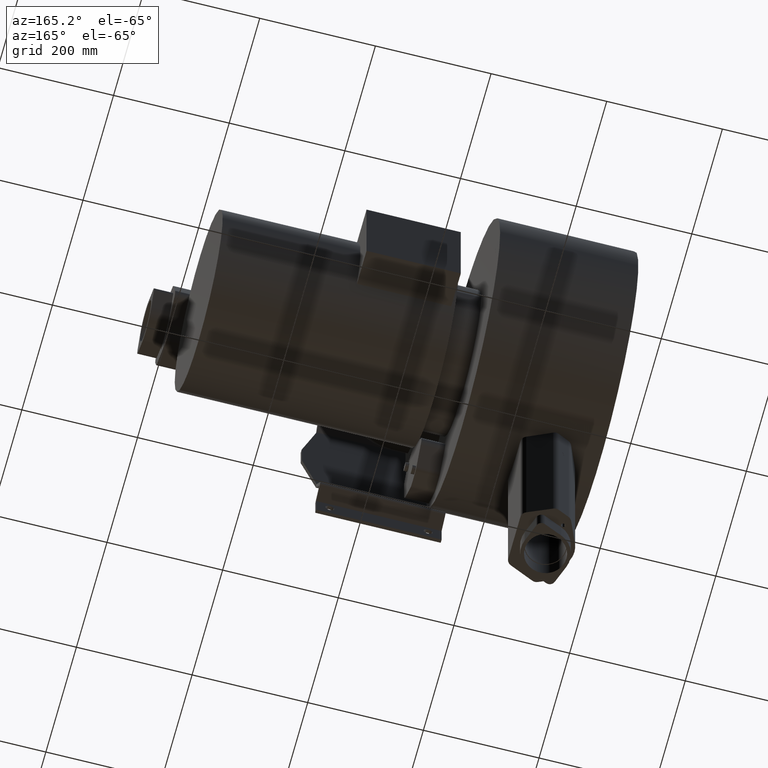
[diagram: clean part render]
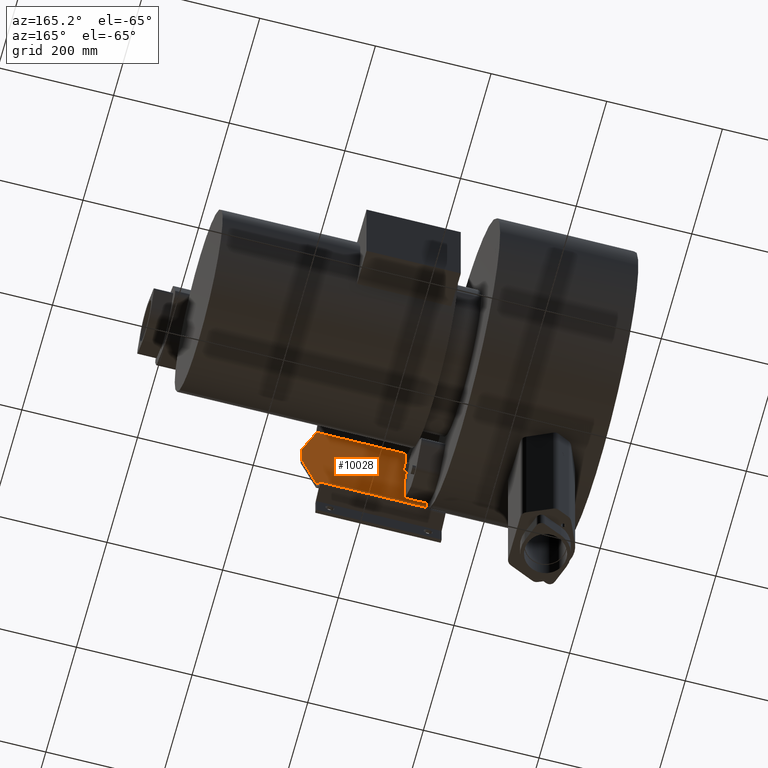
[diagram: same view with one face highlighted and labeled with its STEP entity id]
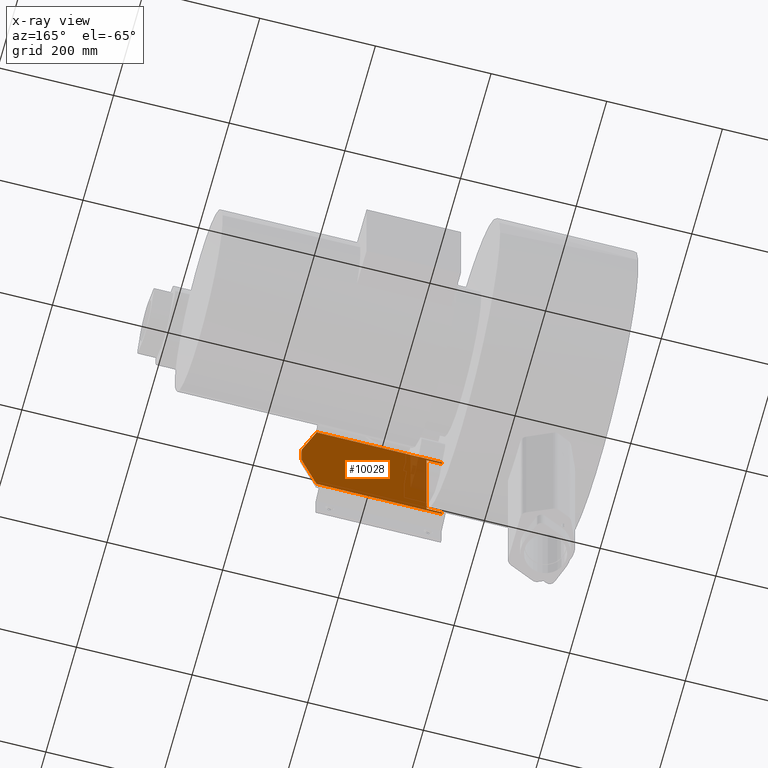
[diagram: x-ray of the same camera — body ghosted, the highlighted face saturated]
A machine part, auxiliary view. The second image highlights one B-rep face of the part: STEP entity #10028.
The next image is the same camera in x-ray: the body ghosted, the highlighted face saturated — about 9% of this face is hidden behind the body in this view.
In plain terms, the highlighted planar face has unit normal (0, 1, 0).
Its self-contained STEP definition (entity closure, byte-faithful):
#9752=CARTESIAN_POINT('',(212.30000000000004,-230.99999999999997,95.598117136270048));
#9753=VERTEX_POINT('',#9752);
#9761=CARTESIAN_POINT('',(239.00000000000003,-230.99999999999997,95.598117136270048));
#9762=VERTEX_POINT('',#9761);
#9763=CARTESIAN_POINT('',(212.30000000000004,-230.99999999999997,95.598117136270048));
#9764=DIRECTION('',(1.0,0.0,0.0));
#9765=VECTOR('',#9764,26.69999999999996);
#9766=LINE('',#9763,#9765);
#9767=EDGE_CURVE('',#9753,#9762,#9766,.T.);
#9769=CARTESIAN_POINT('',(239.00000000000003,-230.99999999999997,-95.598117136270048));
#9770=VERTEX_POINT('',#9769);
#9778=CARTESIAN_POINT('',(212.30000000000004,-230.99999999999997,-95.598117136270048));
#9779=VERTEX_POINT('',#9778);
#9780=CARTESIAN_POINT('',(239.0,-230.99999999999997,-95.598117136270048));
#9781=DIRECTION('',(-1.0,0.0,0.0));
#9782=VECTOR('',#9781,26.69999999999996);
#9783=LINE('',#9780,#9782);
#9784=EDGE_CURVE('',#9770,#9779,#9783,.T.);
#9959=CARTESIAN_POINT('',(239.00000000000003,-230.99999999999997,102.21539030917339));
#9960=DIRECTION('',(0.0,1.0,0.0));
#9961=DIRECTION('',(0.0,0.0,1.0));
#9962=AXIS2_PLACEMENT_3D('',#9959,#9960,#9961);
#9963=PLANE('',#9962);
#9964=ORIENTED_EDGE('',*,*,#9767,.F.);
#9965=CARTESIAN_POINT('',(212.30000000000007,-230.99999999999997,102.21539030917339));
#9966=VERTEX_POINT('',#9965);
#9967=CARTESIAN_POINT('',(212.30000000000004,-230.99999999999997,95.598117136270034));
#9968=DIRECTION('',(0.0,0.0,1.0));
#9969=VECTOR('',#9968,6.617273172903339);
#9970=LINE('',#9967,#9969);
#9971=EDGE_CURVE('',#9753,#9966,#9970,.T.);
#9972=ORIENTED_EDGE('',*,*,#9971,.T.);
#9973=CARTESIAN_POINT('',(429.30000000000007,-230.99999999999997,102.21539030917339));
#9974=VERTEX_POINT('',#9973);
#9975=CARTESIAN_POINT('',(212.30000000000007,-230.99999999999997,102.21539030917339));
#9976=DIRECTION('',(1.0,0.0,0.0));
#9977=VECTOR('',#9976,217.0);
#9978=LINE('',#9975,#9977);
#9979=EDGE_CURVE('',#9966,#9974,#9978,.T.);
#9980=ORIENTED_EDGE('',*,*,#9979,.T.);
#9981=CARTESIAN_POINT('',(455.30000000000001,-230.99999999999994,19.00010969082664));
#9982=VERTEX_POINT('',#9981);
#9983=CARTESIAN_POINT('',(455.30000000000007,-230.99999999999997,19.000109690826648));
#9984=DIRECTION('',(-0.298225093315993,0.0,0.954495570297038));
#9985=VECTOR('',#9984,87.182469157452715);
#9986=LINE('',#9983,#9985);
#9987=EDGE_CURVE('',#9982,#9974,#9986,.T.);
#9988=ORIENTED_EDGE('',*,*,#9987,.F.);
#9989=CARTESIAN_POINT('',(455.30000000000007,-230.99999999999994,-20.999890309173352));
#9990=VERTEX_POINT('',#9989);
#9991=CARTESIAN_POINT('',(455.30000000000007,-230.99999999999997,-20.999890309173352));
#9992=DIRECTION('',(0.0,0.0,1.0));
#9993=VECTOR('',#9992,39.999999999999993);
#9994=LINE('',#9991,#9993);
#9995=EDGE_CURVE('',#9990,#9982,#9994,.T.);
#9996=ORIENTED_EDGE('',*,*,#9995,.F.);
#9997=CARTESIAN_POINT('',(429.30000000000007,-230.99999999999997,-102.21539030917339));
#9998=VERTEX_POINT('',#9997);
#9999=CARTESIAN_POINT('',(429.30000000000007,-230.99999999999997,-102.21539030917337));
#10000=DIRECTION('',(0.304893161585802,0.0,0.952386560183529));
#10001=VECTOR('',#10000,85.275772879816245);
#10002=LINE('',#9999,#10001);
#10003=EDGE_CURVE('',#9998,#9990,#10002,.T.);
#10004=ORIENTED_EDGE('',*,*,#10003,.F.);
#10005=CARTESIAN_POINT('',(212.30000000000007,-230.99999999999997,-102.21539030917339));
#10006=VERTEX_POINT('',#10005);
#10007=CARTESIAN_POINT('',(212.30000000000007,-230.99999999999997,-102.21539030917339));
#10008=DIRECTION('',(1.0,0.0,0.0));
#10009=VECTOR('',#10008,217.0);
#10010=LINE('',#10007,#10009);
#10011=EDGE_CURVE('',#10006,#9998,#10010,.T.);
#10012=ORIENTED_EDGE('',*,*,#10011,.F.);
#10013=CARTESIAN_POINT('',(212.30000000000004,-230.99999999999997,-95.598117136270034));
#10014=DIRECTION('',(0.0,0.0,-1.0));
#10015=VECTOR('',#10014,6.617273172903339);
#10016=LINE('',#10013,#10015);
#10017=EDGE_CURVE('',#9779,#10006,#10016,.T.);
#10018=ORIENTED_EDGE('',*,*,#10017,.F.);
#10019=ORIENTED_EDGE('',*,*,#9784,.F.);
#10020=CARTESIAN_POINT('',(239.00000000000003,-230.99999999999997,95.598117136270034));
#10021=DIRECTION('',(0.0,0.0,-1.0));
#10022=VECTOR('',#10021,191.1962342725401);
#10023=LINE('',#10020,#10022);
#10024=EDGE_CURVE('',#9762,#9770,#10023,.T.);
#10025=ORIENTED_EDGE('',*,*,#10024,.F.);
#10026=EDGE_LOOP('',(#9964,#9972,#9980,#9988,#9996,#10004,#10012,#10018,#10019,#10025));
#10027=FACE_OUTER_BOUND('',#10026,.T.);
#10028=ADVANCED_FACE('',(#10027),#9963,.T.);